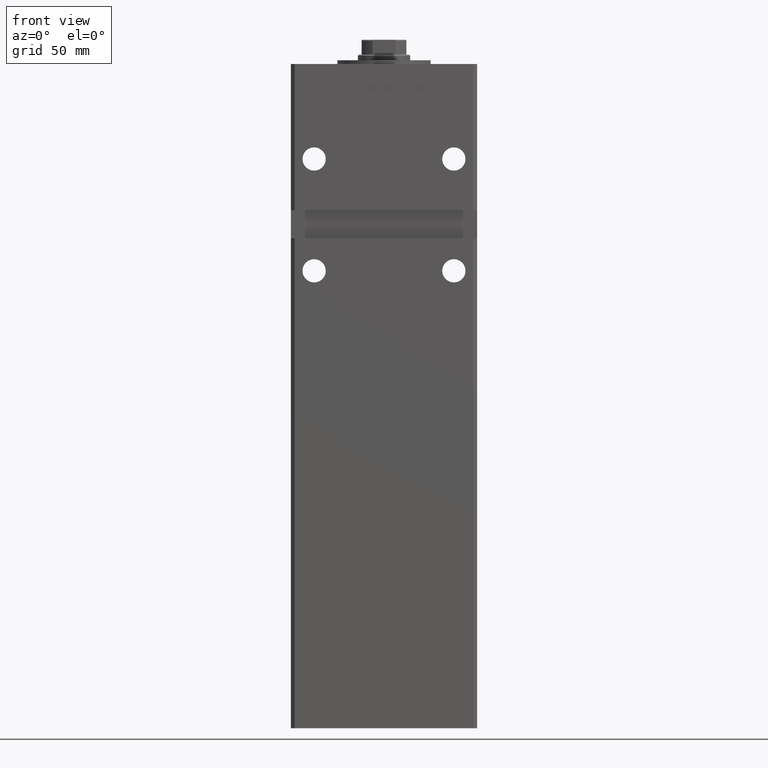
[diagram: clean part render]
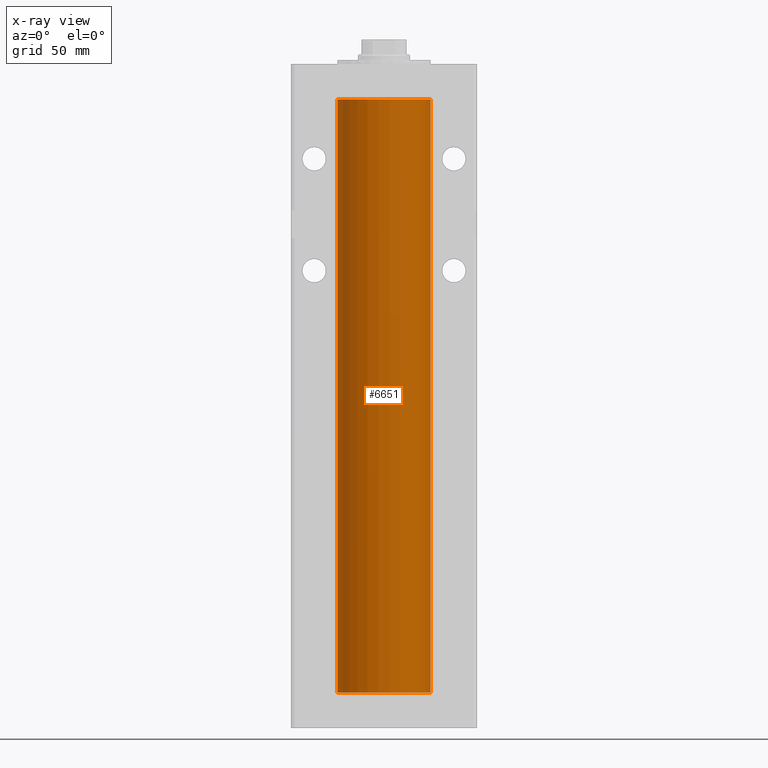
[diagram: x-ray — body ghosted, one internal face saturated and labeled with its STEP entity id]
A machine part, front view, then the same camera in x-ray: the body is ghosted and one INTERNAL B-rep face — a face not visible from any outside direction — is saturated and labeled: STEP entity #6651.
In plain terms, the highlighted cylindrical surface (partial cylindrical patch) has radius 25 mm, axis along (-0, -0, -1).
Its self-contained STEP definition (entity closure, byte-faithful):
#71 = DIRECTION ( 'NONE',  ( 1.000000000000000000, 0.000000000000000000, 0.000000000000000000 ) ) ;
#2769 = CARTESIAN_POINT ( 'NONE',  ( 0.000000000000000000, 0.000000000000000000, 318.5000000000000000 ) ) ;
#3320 = DIRECTION ( 'NONE',  ( -1.000000000000000000, 0.000000000000000000, 0.000000000000000000 ) ) ;
#3419 = EDGE_CURVE ( 'NONE', #8760, #25432, #26929, .T. ) ;
#3766 = VECTOR ( 'NONE', #47412, 1000.000000000000000 ) ;
#6468 = VECTOR ( 'NONE', #38989, 1000.000000000000000 ) ;
#6651 = ADVANCED_FACE ( 'NONE', ( #23489 ), #7071, .F. ) ;
#7071 = CYLINDRICAL_SURFACE ( 'NONE', #8159, 25.00000000000000000 ) ;
#7241 = ORIENTED_EDGE ( 'NONE', *, *, #3419, .T. ) ;
#8129 = CARTESIAN_POINT ( 'NONE',  ( 0.000000000000000000, 0.000000000000000000, 318.5000000000000000 ) ) ;
#8159 = AXIS2_PLACEMENT_3D ( 'NONE', #2769, #10581, #3320 ) ;
#8760 = VERTEX_POINT ( 'NONE', #15525 ) ;
#10581 = DIRECTION ( 'NONE',  ( -0.000000000000000000, -0.000000000000000000, -1.000000000000000000 ) ) ;
#11675 = CARTESIAN_POINT ( 'NONE',  ( 25.00000000000000000, 3.061616997868383043E-15, 318.5000000000000000 ) ) ;
#12924 = VERTEX_POINT ( 'NONE', #50852 ) ;
#12980 = EDGE_CURVE ( 'NONE', #8760, #29410, #34694, .T. ) ;
#13436 = DIRECTION ( 'NONE',  ( 1.000000000000000000, 0.000000000000000000, 0.000000000000000000 ) ) ;
#14489 = CARTESIAN_POINT ( 'NONE',  ( -25.00000000000000000, 0.000000000000000000, 0.000000000000000000 ) ) ;
#15525 = CARTESIAN_POINT ( 'NONE',  ( -25.00000000000000000, 0.000000000000000000, 318.5000000000000000 ) ) ;
#19599 = AXIS2_PLACEMENT_3D ( 'NONE', #36895, #29596, #13436 ) ;
#20381 = EDGE_CURVE ( 'NONE', #29410, #12924, #37667, .T. ) ;
#22568 = CARTESIAN_POINT ( 'NONE',  ( -25.00000000000000000, 0.000000000000000000, 318.5000000000000000 ) ) ;
#23489 = FACE_OUTER_BOUND ( 'NONE', #37298, .T. ) ;
#24669 = ORIENTED_EDGE ( 'NONE', *, *, #41310, .T. ) ;
#25432 = VERTEX_POINT ( 'NONE', #11675 ) ;
#26929 = CIRCLE ( 'NONE', #36410, 25.00000000000000000 ) ;
#27735 = CARTESIAN_POINT ( 'NONE',  ( 25.00000000000000000, 3.061616997868383043E-15, 318.5000000000000000 ) ) ;
#29410 = VERTEX_POINT ( 'NONE', #14489 ) ;
#29596 = DIRECTION ( 'NONE',  ( -0.000000000000000000, 0.000000000000000000, 1.000000000000000000 ) ) ;
#30070 = ORIENTED_EDGE ( 'NONE', *, *, #12980, .F. ) ;
#31784 = LINE ( 'NONE', #27735, #3766 ) ;
#34694 = LINE ( 'NONE', #22568, #6468 ) ;
#36410 = AXIS2_PLACEMENT_3D ( 'NONE', #8129, #44758, #71 ) ;
#36895 = CARTESIAN_POINT ( 'NONE',  ( 0.000000000000000000, 0.000000000000000000, 0.000000000000000000 ) ) ;
#37298 = EDGE_LOOP ( 'NONE', ( #7241, #24669, #39334, #30070 ) ) ;
#37667 = CIRCLE ( 'NONE', #19599, 25.00000000000000000 ) ;
#38989 = DIRECTION ( 'NONE',  ( -0.000000000000000000, -0.000000000000000000, -1.000000000000000000 ) ) ;
#39334 = ORIENTED_EDGE ( 'NONE', *, *, #20381, .F. ) ;
#41310 = EDGE_CURVE ( 'NONE', #25432, #12924, #31784, .T. ) ;
#44758 = DIRECTION ( 'NONE',  ( -0.000000000000000000, 0.000000000000000000, 1.000000000000000000 ) ) ;
#47412 = DIRECTION ( 'NONE',  ( -0.000000000000000000, -0.000000000000000000, -1.000000000000000000 ) ) ;
#50852 = CARTESIAN_POINT ( 'NONE',  ( 25.00000000000000000, 3.061616997868383043E-15, 0.000000000000000000 ) ) ;